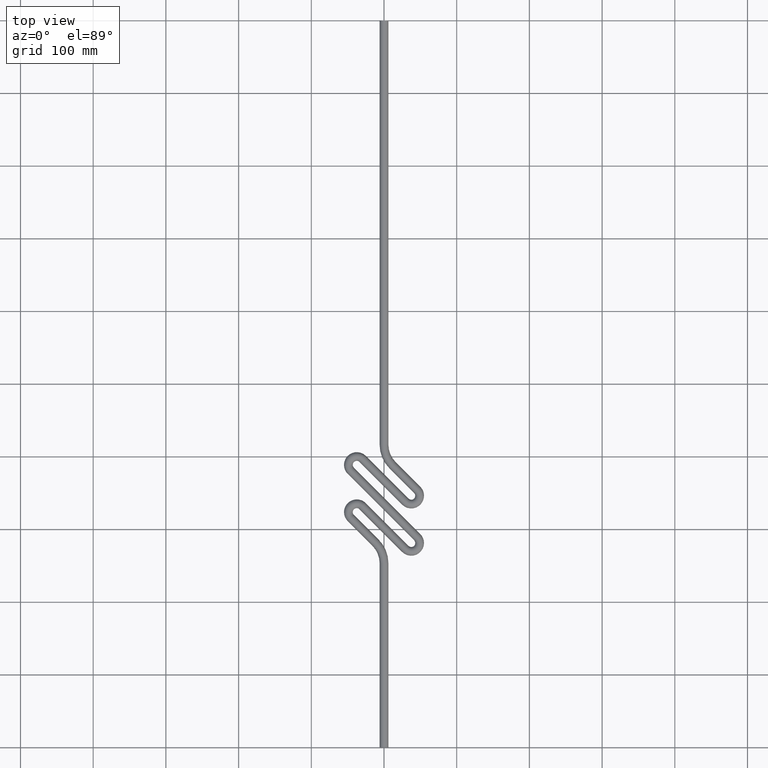
[diagram: clean part render]
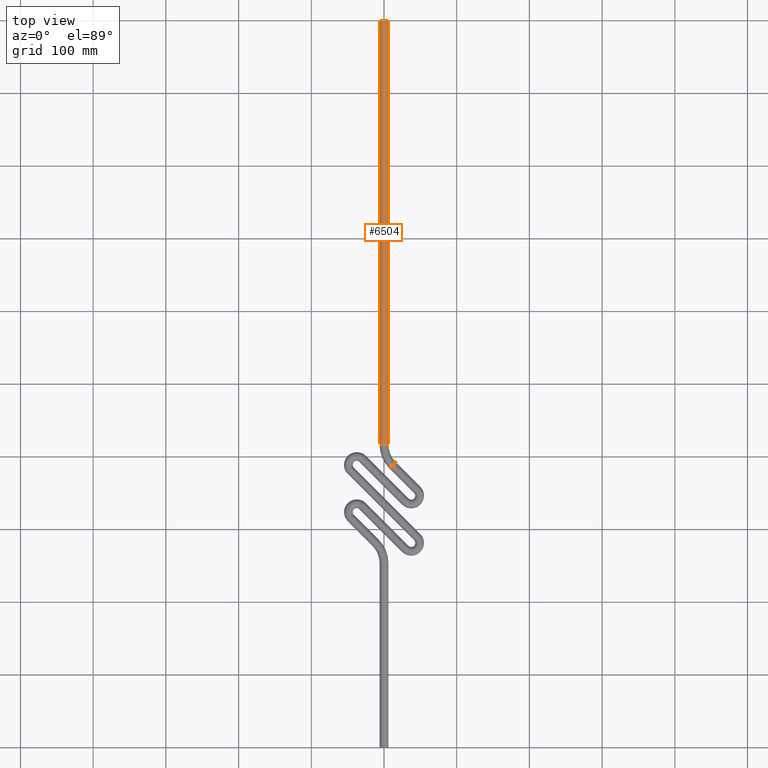
[diagram: same view with one face highlighted and labeled with its STEP entity id]
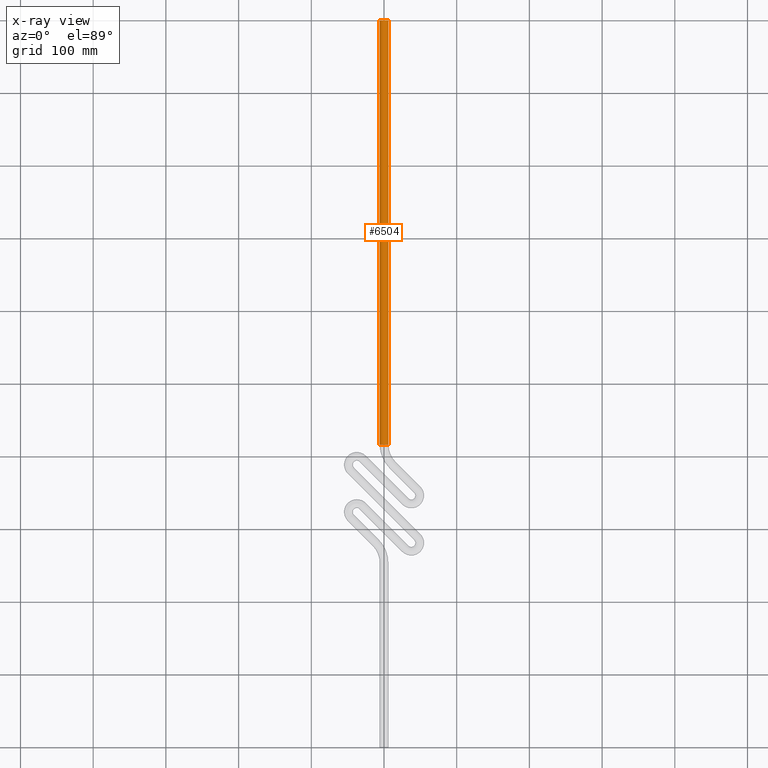
[diagram: x-ray of the same camera — body ghosted, the highlighted face saturated]
A machine part, top view. The second image highlights one B-rep face of the part: STEP entity #6504.
The next image is the same camera in x-ray: the body ghosted, the highlighted face saturated — about 0% of this face is hidden behind the body in this view.
In plain terms, the highlighted cylindrical surface (edge-blend (fillet) strip) has radius 6 mm, axis along (0, 1, 0).
Its self-contained STEP definition (entity closure, byte-faithful):
#76 = DIRECTION ( 'NONE',  ( -2.305933222146450100E-013, -1.000000000000000000, 4.088782444489021400E-016 ) ) ;
#272 = DIRECTION ( 'NONE',  ( 1.000000000000000000, -2.312964634635765200E-013, 0.0000000000000000000 ) ) ;
#512 = ORIENTED_EDGE ( 'NONE', *, *, #1643, .T. ) ;
#647 = EDGE_LOOP ( 'NONE', ( #4878, #4392, #512, #5155 ) ) ;
#755 = CARTESIAN_POINT ( 'NONE',  ( 5.999999999996722600, 416.5942444935378700, 3.673940397441986900E-016 ) ) ;
#771 = CARTESIAN_POINT ( 'NONE',  ( -6.000000000002210700, 999.9689414074943000, -3.673940397453165600E-016 ) ) ;
#788 = CYLINDRICAL_SURFACE ( 'NONE', #2203, 5.999999999999942300 ) ;
#799 = EDGE_CURVE ( 'NONE', #4892, #2742, #2168, .T. ) ;
#952 = CARTESIAN_POINT ( 'NONE',  ( -6.000000000003161900, 416.5942444935378700, -3.673940397442061300E-016 ) ) ;
#979 = DIRECTION ( 'NONE',  ( 1.629533248294969700E-015, 1.000000000000000000, 0.0000000000000000000 ) ) ;
#1121 = FACE_OUTER_BOUND ( 'NONE', #647, .T. ) ;
#1401 = EDGE_CURVE ( 'NONE', #4892, #1932, #6783, .T. ) ;
#1516 = CARTESIAN_POINT ( 'NONE',  ( -3.219646771412954000E-012, 416.5942444935378700, -3.673940397442061300E-016 ) ) ;
#1545 = CARTESIAN_POINT ( 'NONE',  ( 5.999999999996722600, 416.5942444935365100, 3.673940397441969600E-016 ) ) ;
#1643 = EDGE_CURVE ( 'NONE', #1932, #1929, #1786, .T. ) ;
#1671 = AXIS2_PLACEMENT_3D ( 'NONE', #3440, #76, #3969 ) ;
#1786 = CIRCLE ( 'NONE', #1671, 5.999999999999942300 ) ;
#1929 = VERTEX_POINT ( 'NONE', #771 ) ;
#1932 = VERTEX_POINT ( 'NONE', #4597 ) ;
#2168 = CIRCLE ( 'NONE', #5544, 5.999999999999942300 ) ;
#2203 = AXIS2_PLACEMENT_3D ( 'NONE', #1516, #979, #4249 ) ;
#2519 = VECTOR ( 'NONE', #4580, 1000.000000000000000 ) ;
#2742 = VERTEX_POINT ( 'NONE', #5275 ) ;
#2791 = LINE ( 'NONE', #952, #5456 ) ;
#3440 = CARTESIAN_POINT ( 'NONE',  ( -2.269018306577663300E-012, 999.9689414074929300, -3.673940397442061300E-016 ) ) ;
#3615 = DIRECTION ( 'NONE',  ( -2.305933222146450100E-013, -1.000000000000000000, 4.088782444489021400E-016 ) ) ;
#3969 = DIRECTION ( 'NONE',  ( 1.000000000000000000, -2.220446049250334500E-013, 0.0000000000000000000 ) ) ;
#4229 = DIRECTION ( 'NONE',  ( 1.629533248294969700E-015, 1.000000000000000000, 0.0000000000000000000 ) ) ;
#4249 = DIRECTION ( 'NONE',  ( -1.000000000000000000, 0.0000000000000000000, 0.0000000000000000000 ) ) ;
#4392 = ORIENTED_EDGE ( 'NONE', *, *, #1401, .T. ) ;
#4580 = DIRECTION ( 'NONE',  ( 1.629533248294969700E-015, 1.000000000000000000, 0.0000000000000000000 ) ) ;
#4597 = CARTESIAN_POINT ( 'NONE',  ( 5.999999999997673000, 999.9689414074915700, 3.673940397442779700E-016 ) ) ;
#4878 = ORIENTED_EDGE ( 'NONE', *, *, #799, .F. ) ;
#4892 = VERTEX_POINT ( 'NONE', #1545 ) ;
#5155 = ORIENTED_EDGE ( 'NONE', *, *, #6439, .F. ) ;
#5275 = CARTESIAN_POINT ( 'NONE',  ( -6.000000000003161900, 416.5942444935392900, -3.673940397453392300E-016 ) ) ;
#5456 = VECTOR ( 'NONE', #4229, 1000.000000000000000 ) ;
#5544 = AXIS2_PLACEMENT_3D ( 'NONE', #6822, #3615, #272 ) ;
#6439 = EDGE_CURVE ( 'NONE', #2742, #1929, #2791, .T. ) ;
#6504 = ADVANCED_FACE ( 'NONE', ( #1121 ), #788, .T. ) ;
#6783 = LINE ( 'NONE', #755, #2519 ) ;
#6822 = CARTESIAN_POINT ( 'NONE',  ( -3.219646771412954000E-012, 416.5942444935378700, -3.673940397442061300E-016 ) ) ;